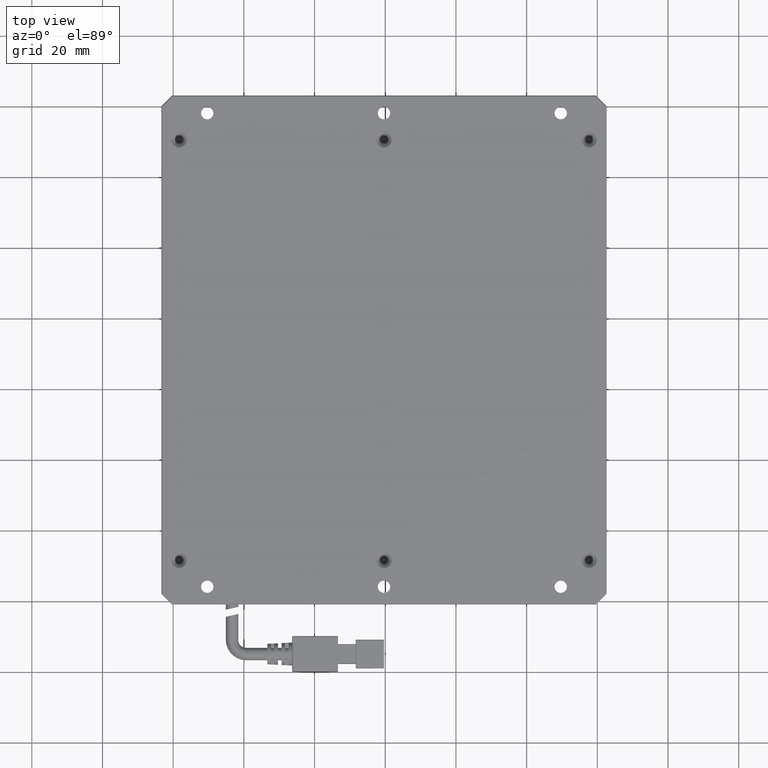
[diagram: clean part render]
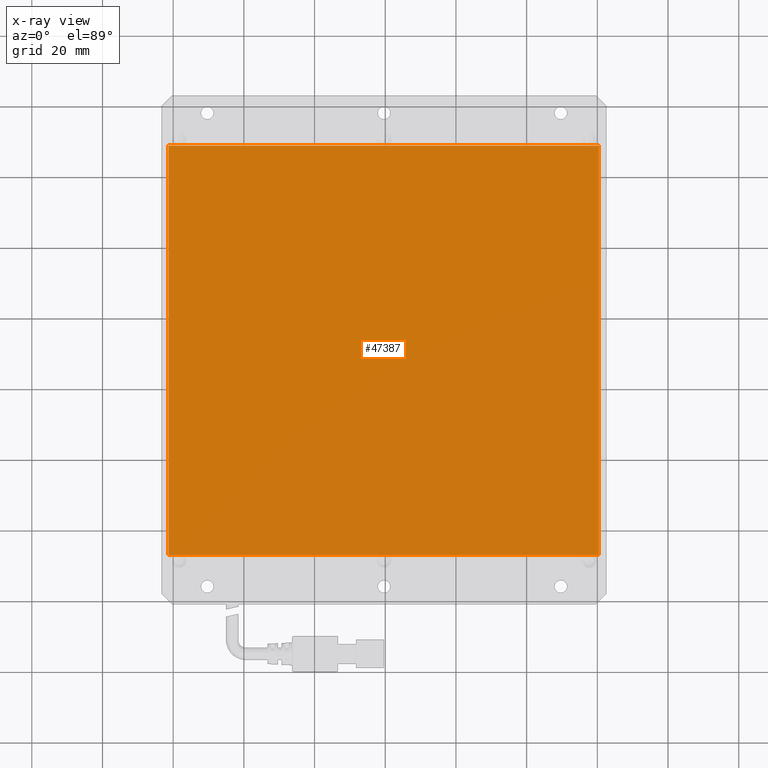
[diagram: x-ray — body ghosted, one internal face saturated and labeled with its STEP entity id]
A machine part, top view, then the same camera in x-ray: the body is ghosted and one INTERNAL B-rep face — a face not visible from any outside direction — is saturated and labeled: STEP entity #47387.
In plain terms, the highlighted planar face has unit normal (0, 0, 1).
Its self-contained STEP definition (entity closure, byte-faithful):
#986 = LINE ( 'NONE', #17775, #40028 ) ;
#2832 = LINE ( 'NONE', #25538, #41886 ) ;
#8631 = DIRECTION ( 'NONE',  ( 1.000000000000000000, 2.220446049250312600E-016, -0.0000000000000000000 ) ) ;
#9956 = EDGE_CURVE ( 'NONE', #85332, #32742, #19516, .T. ) ;
#13222 = CARTESIAN_POINT ( 'NONE',  ( 60.44490263459341900, -47.11034746086287600, 13.99999999998362900 ) ) ;
#17775 = CARTESIAN_POINT ( 'NONE',  ( -61.35509736540661400, 68.68965253913710000, 13.99999999998362900 ) ) ;
#19516 = LINE ( 'NONE', #25783, #61028 ) ;
#19971 = LINE ( 'NONE', #55367, #22409 ) ;
#22409 = VECTOR ( 'NONE', #8631, 1000.000000000000000 ) ;
#25538 = CARTESIAN_POINT ( 'NONE',  ( -61.35509736540658600, -47.11034746086287600, 13.99999999998362900 ) ) ;
#25783 = CARTESIAN_POINT ( 'NONE',  ( 60.44490263459341900, -47.11034746086284700, 13.99999999998362900 ) ) ;
#29288 = ORIENTED_EDGE ( 'NONE', *, *, #53287, .T. ) ;
#32742 = VERTEX_POINT ( 'NONE', #84245 ) ;
#33401 = DIRECTION ( 'NONE',  ( 2.220446049250312600E-016, -1.000000000000000000, -0.0000000000000000000 ) ) ;
#36090 = VERTEX_POINT ( 'NONE', #47703 ) ;
#38148 = DIRECTION ( 'NONE',  ( 0.0000000000000000000, 0.0000000000000000000, 1.000000000000000000 ) ) ;
#40028 = VECTOR ( 'NONE', #80632, 1000.000000000000000 ) ;
#41886 = VECTOR ( 'NONE', #33401, 1000.000000000000000 ) ;
#42661 = EDGE_CURVE ( 'NONE', #79517, #85332, #19971, .T. ) ;
#47387 = ADVANCED_FACE ( 'NONE', ( #57732 ), #53506, .T. ) ;
#47703 = CARTESIAN_POINT ( 'NONE',  ( -61.35509736540661400, 68.68965253913710000, 13.99999999998362900 ) ) ;
#53287 = EDGE_CURVE ( 'NONE', #32742, #36090, #986, .T. ) ;
#53506 = PLANE ( 'NONE',  #80312 ) ;
#55367 = CARTESIAN_POINT ( 'NONE',  ( -61.35509736540658600, -47.11034746086289700, 13.99999999998362900 ) ) ;
#57732 = FACE_OUTER_BOUND ( 'NONE', #80962, .T. ) ;
#61028 = VECTOR ( 'NONE', #80418, 1000.000000000000000 ) ;
#63955 = ORIENTED_EDGE ( 'NONE', *, *, #9956, .T. ) ;
#65975 = EDGE_CURVE ( 'NONE', #36090, #79517, #2832, .T. ) ;
#79517 = VERTEX_POINT ( 'NONE', #97624 ) ;
#80312 = AXIS2_PLACEMENT_3D ( 'NONE', #85015, #38148, #92854 ) ;
#80418 = DIRECTION ( 'NONE',  ( -2.220446049250312600E-016, 1.000000000000000000, 0.0000000000000000000 ) ) ;
#80632 = DIRECTION ( 'NONE',  ( -1.000000000000000000, -2.220446049250312600E-016, 0.0000000000000000000 ) ) ;
#80962 = EDGE_LOOP ( 'NONE', ( #29288, #100477, #84396, #63955 ) ) ;
#84245 = CARTESIAN_POINT ( 'NONE',  ( 60.44490263459339000, 68.68965253913712800, 13.99999999998362900 ) ) ;
#84396 = ORIENTED_EDGE ( 'NONE', *, *, #42661, .T. ) ;
#85015 = CARTESIAN_POINT ( 'NONE',  ( -61.35509736540658600, -47.11034746086287600, 13.99999999998362900 ) ) ;
#85332 = VERTEX_POINT ( 'NONE', #13222 ) ;
#92854 = DIRECTION ( 'NONE',  ( -2.220446049250312600E-016, 1.000000000000000000, 0.0000000000000000000 ) ) ;
#97624 = CARTESIAN_POINT ( 'NONE',  ( -61.35509736540658600, -47.11034746086289700, 13.99999999998362900 ) ) ;
#100477 = ORIENTED_EDGE ( 'NONE', *, *, #65975, .T. ) ;